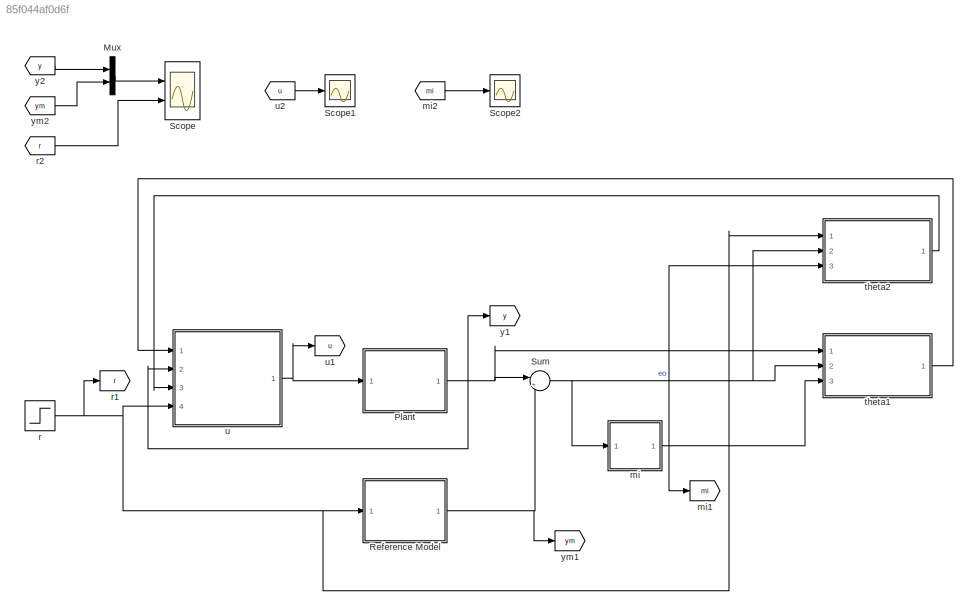
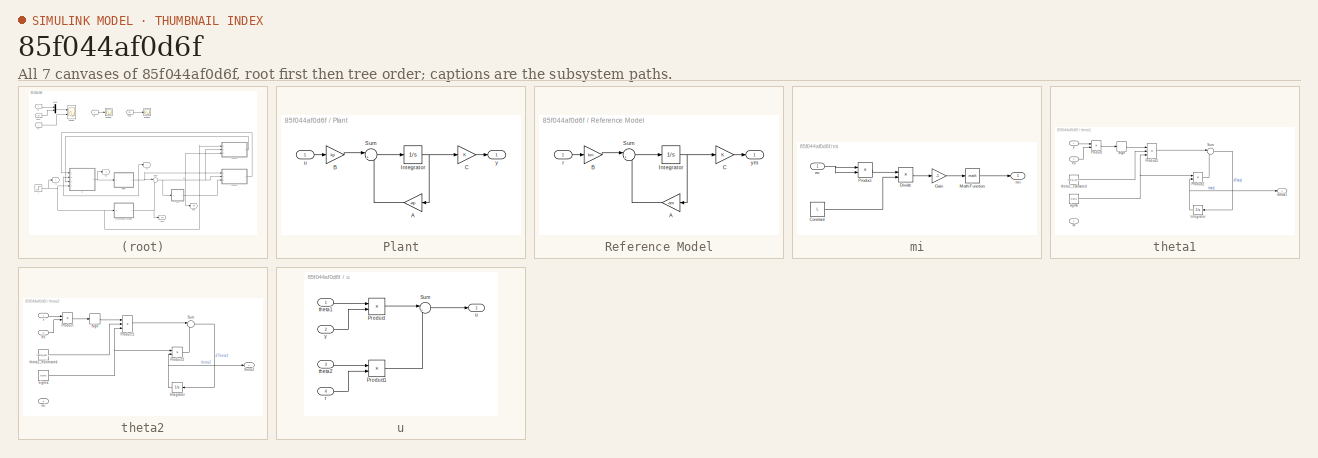
[diagram: thumbnail index - all 7 canvases of the model, root first then tree order]
MODEL slx_85f044af0d6f
KIND model
CONFIG AbsTol = auto
CONFIG EnableMultiTasking = on
CONFIG FixedStep = auto
CONFIG InitFcn = u = 0;\nym = 0;\ny = 0.5;\neo = 0;\nam = 1;\nkm = 1;\nap = -1;\nkp = 1;\ntheta1 = 0;\ntheta2 = 0;\ntheta1_estimated = 2.1;\ntheta2_estimated = 1.1;\nsigma = 1;\nL = 1000000;\nmi = 0;
CONFIG MaxStep = auto
CONFIG MinStep = auto
CONFIG RelTol = 1e-3
CONFIG SampleTimeConstraint = Unconstrained
CONFIG Solver = ode45
CONFIG SolverName = ode45
CONFIG StartTime = 0.0
CONFIG StopTime = 10
BLOCK [Mux] Mux
  DisplayOption = bar
  Inputs = 2
  Ports = [2, 1]
BLOCK [SubSystem] Plant
  Ports = [1, 1]
  RequestExecContextInheritance = off
BLOCK [Gain] Plant/A
  Gain = -ap
  OutDataTypeStr = Inherit: Inherit via internal rule
  ParamDataTypeStr = Inherit: Inherit via internal rule
  SaturateOnIntegerOverflow = off
BLOCK [Gain] Plant/B
  Gain = kp
  OutDataTypeStr = Inherit: Inherit via internal rule
  ParamDataTypeStr = Inherit: Inherit via internal rule
  SaturateOnIntegerOverflow = off
BLOCK [Gain] Plant/C
  OutDataTypeStr = Inherit: Inherit via internal rule
  ParamDataTypeStr = Inherit: Inherit via internal rule
  SaturateOnIntegerOverflow = off
BLOCK [Integrator] Plant/Integrator
  Ports = [1, 1]
BLOCK [Sum] Plant/Sum
  IconShape = round
  InputSameDT = off
  Inputs = |++
  OutDataTypeStr = Inherit: Inherit via internal rule
  Ports = [2, 1]
  SaturateOnIntegerOverflow = off
BLOCK [Inport] Plant/u
  IconDisplay = Port number
BLOCK [Outport] Plant/y
  IconDisplay = Port number
BLOCK [SubSystem] Reference Model
  Ports = [1, 1]
  RequestExecContextInheritance = off
BLOCK [Gain] Reference Model/A
  Gain = -am
  OutDataTypeStr = Inherit: Inherit via internal rule
  ParamDataTypeStr = Inherit: Inherit via internal rule
  SaturateOnIntegerOverflow = off
BLOCK [Gain] Reference Model/B
  Gain = km
  OutDataTypeStr = Inherit: Inherit via internal rule
  ParamDataTypeStr = Inherit: Inherit via internal rule
  SaturateOnIntegerOverflow = off
BLOCK [Gain] Reference Model/C
  OutDataTypeStr = Inherit: Inherit via internal rule
  ParamDataTypeStr = Inherit: Inherit via internal rule
  SaturateOnIntegerOverflow = off
BLOCK [Integrator] Reference Model/Integrator
  Ports = [1, 1]
BLOCK [Sum] Reference Model/Sum
  IconShape = round
  InputSameDT = off
  Inputs = |++
  OutDataTypeStr = Inherit: Inherit via internal rule
  Ports = [2, 1]
  SaturateOnIntegerOverflow = off
BLOCK [Inport] Reference Model/r
  IconDisplay = Port number
BLOCK [Outport] Reference Model/ym
  IconDisplay = Port number
BLOCK [Scope] Scope
  Floating = off
  NumInputPorts = 2
  Ports = [2]
  ScopeSpecificationString = Simulink.scopes.TimeScopeBlockCfg('CurrentConfiguration', extmgr.ConfigurationSet(extmgr.Configuration('Core','General UI',true),extmgr.Configuration('Core','Source UI',true),extmgr.Configuration('Sources','WiredSimulink',true,'DataLoggingSaveFormat','StructureWithTime','DataLoggingLimitDataPoints',true,'DataLoggingDecimation','1','DataLoggingDecimateData',true),extmgr.Configuration('Visuals','Tim...<+2341ch>
BLOCK [Scope] Scope1
  Floating = off
  NumInputPorts = 1
  Ports = [1]
  ScopeSpecificationString = C++SS(StrPVP('Location','[374, 222, 1029, 680]'),StrPVP('Open','off'),MxPVP('AxesTitles',53,'struct(''axes1'',''%<SignalLabel>'')'),MxPVP('ScopeGraphics',56,'struct(''FigureColor'',''[0.5 0.5 0.5]'',''AxesColor'',''[0 0 0]'',''AxesTickColor'',''[1 1 1]'',''LineColors'',''[1 1 0;1 0 1;0 1 1;1 0 0;0 1 0;0 0 1]'',''LineStyles'',''-|-|-|-|-|-'',''LineWidths'',''[0.5 0.5 0.5 0.5 0.5 0.5]'',''MarkerStyl...<+272ch>
BLOCK [Scope] Scope2
  Floating = off
  NumInputPorts = 1
  Ports = [1]
  ScopeSpecificationString = C++SS(StrPVP('Location','[322, 233, 1032, 659]'),StrPVP('Open','off'),MxPVP('AxesTitles',53,'struct(''axes1'',''%<SignalLabel>'')'),MxPVP('ScopeGraphics',56,'struct(''FigureColor'',''[0.5 0.5 0.5]'',''AxesColor'',''[0 0 0]'',''AxesTickColor'',''[1 1 1]'',''LineColors'',''[1 1 0;1 0 1;0 1 1;1 0 0;0 1 0;0 0 1]'',''LineStyles'',''-|-|-|-|-|-'',''LineWidths'',''[0.5 0.5 0.5 0.5 0.5 0.5]'',''MarkerStyl...<+272ch>
BLOCK [Sum] Sum
  IconShape = round
  InputSameDT = off
  Inputs = |+-
  OutDataTypeStr = Inherit: Inherit via internal rule
  Ports = [2, 1]
  SaturateOnIntegerOverflow = off
BLOCK [SubSystem] mi
  Ports = [1, 1]
  RequestExecContextInheritance = off
BLOCK [Constant] mi/Constant
  Value = L
BLOCK [Product] mi/Divide
  InputSameDT = off
  Inputs = */
  OutDataTypeStr = Inherit: Inherit via internal rule
  Ports = [2, 1]
  RndMeth = Floor
  SaturateOnIntegerOverflow = off
BLOCK [Gain] mi/Gain
  Gain = -1
  OutDataTypeStr = Inherit: Inherit via internal rule
  ParamDataTypeStr = Inherit: Inherit via internal rule
  SaturateOnIntegerOverflow = off
BLOCK [Math] mi/Math Function
  Ports = [1, 1]
BLOCK [Product] mi/Product
  InputSameDT = off
  OutDataTypeStr = Inherit: Inherit via internal rule
  Ports = [2, 1]
  RndMeth = Floor
  SaturateOnIntegerOverflow = off
BLOCK [Inport] mi/eo
  IconDisplay = Port number
BLOCK [Outport] mi/mi
  IconDisplay = Port number
BLOCK [Goto] mi1
  GotoTag = mi
BLOCK [From] mi2
  GotoTag = mi
BLOCK [Step] r
  SampleTime = 0
BLOCK [Goto] r1
  GotoTag = r
BLOCK [From] r2
  GotoTag = r
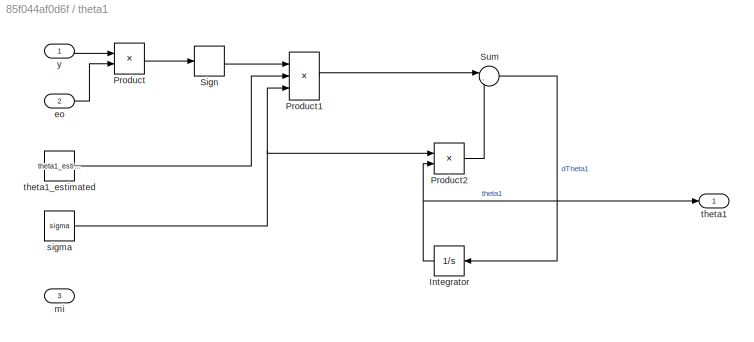
BLOCK [SubSystem] theta1
  Ports = [3, 1]
  RequestExecContextInheritance = off
BLOCK [Integrator] theta1/Integrator
  Ports = [1, 1]
BLOCK [Product] theta1/Product
  InputSameDT = off
  OutDataTypeStr = Inherit: Inherit via internal rule
  Ports = [2, 1]
  RndMeth = Floor
  SaturateOnIntegerOverflow = off
BLOCK [Product] theta1/Product1
  InputSameDT = off
  Inputs = 3
  OutDataTypeStr = Inherit: Inherit via internal rule
  Ports = [3, 1]
  RndMeth = Floor
  SaturateOnIntegerOverflow = off
BLOCK [Product] theta1/Product2
  InputSameDT = off
  OutDataTypeStr = Inherit: Inherit via internal rule
  Ports = [2, 1]
  RndMeth = Floor
  SaturateOnIntegerOverflow = off
BLOCK [Signum] theta1/Sign
BLOCK [Sum] theta1/Sum
  IconShape = round
  InputSameDT = off
  Inputs = |--
  OutDataTypeStr = Inherit: Inherit via internal rule
  Ports = [2, 1]
  SaturateOnIntegerOverflow = off
BLOCK [Inport] theta1/eo
  IconDisplay = Port number
  Port = 2
BLOCK [Inport] theta1/mi
  IconDisplay = Port number
  Port = 3
BLOCK [Constant] theta1/sigma
  Value = sigma
BLOCK [Outport] theta1/theta1
  IconDisplay = Port number
BLOCK [Constant] theta1/theta1_estimated
  Value = theta1_estimated
BLOCK [Inport] theta1/y
  IconDisplay = Port number
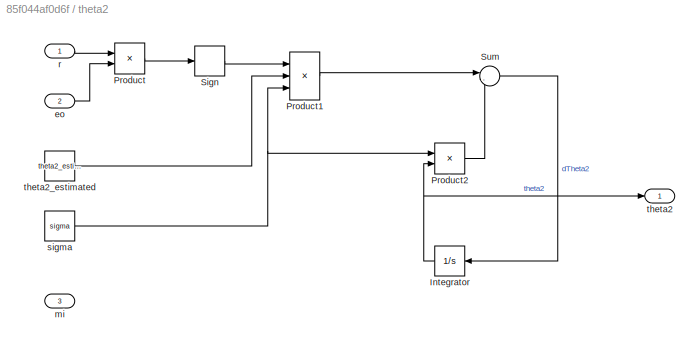
BLOCK [SubSystem] theta2
  Ports = [3, 1]
  RequestExecContextInheritance = off
BLOCK [Integrator] theta2/Integrator
  Ports = [1, 1]
BLOCK [Product] theta2/Product
  InputSameDT = off
  OutDataTypeStr = Inherit: Inherit via internal rule
  Ports = [2, 1]
  RndMeth = Floor
  SaturateOnIntegerOverflow = off
BLOCK [Product] theta2/Product1
  InputSameDT = off
  Inputs = 3
  OutDataTypeStr = Inherit: Inherit via internal rule
  Ports = [3, 1]
  RndMeth = Floor
  SaturateOnIntegerOverflow = off
BLOCK [Product] theta2/Product2
  InputSameDT = off
  OutDataTypeStr = Inherit: Inherit via internal rule
  Ports = [2, 1]
  RndMeth = Floor
  SaturateOnIntegerOverflow = off
BLOCK [Signum] theta2/Sign
BLOCK [Sum] theta2/Sum
  IconShape = round
  InputSameDT = off
  Inputs = |--
  OutDataTypeStr = Inherit: Inherit via internal rule
  Ports = [2, 1]
  SaturateOnIntegerOverflow = off
BLOCK [Inport] theta2/eo
  IconDisplay = Port number
  Port = 2
BLOCK [Inport] theta2/mi
  IconDisplay = Port number
  Port = 3
BLOCK [Inport] theta2/r
  IconDisplay = Port number
BLOCK [Constant] theta2/sigma
  Value = sigma
BLOCK [Outport] theta2/theta2
  IconDisplay = Port number
BLOCK [Constant] theta2/theta2_estimated
  Value = theta2_estimated
BLOCK [SubSystem] u
  Ports = [4, 1]
  RequestExecContextInheritance = off
BLOCK [Product] u/Product
  InputSameDT = off
  OutDataTypeStr = Inherit: Inherit via internal rule
  Ports = [2, 1]
  RndMeth = Floor
  SaturateOnIntegerOverflow = off
BLOCK [Product] u/Product1
  InputSameDT = off
  OutDataTypeStr = Inherit: Inherit via internal rule
  Ports = [2, 1]
  RndMeth = Floor
  SaturateOnIntegerOverflow = off
BLOCK [Sum] u/Sum
  IconShape = round
  InputSameDT = off
  Inputs = |++
  OutDataTypeStr = Inherit: Inherit via internal rule
  Ports = [2, 1]
  SaturateOnIntegerOverflow = off
BLOCK [Inport] u/r
  IconDisplay = Port number
  Port = 4
BLOCK [Inport] u/theta1
  IconDisplay = Port number
BLOCK [Inport] u/theta2
  IconDisplay = Port number
  Port = 3
BLOCK [Outport] u/u
  IconDisplay = Port number
BLOCK [Inport] u/y
  IconDisplay = Port number
  Port = 2
BLOCK [Goto] u1
  GotoTag = u
BLOCK [From] u2
  GotoTag = u
BLOCK [Goto] y1
  GotoTag = y
BLOCK [From] y2
  GotoTag = y
BLOCK [Goto] ym1
  GotoTag = ym
BLOCK [From] ym2
  GotoTag = ym
LINE Mux:1 -> Scope:1
LINE Plant/A:1 -> Plant/Sum:2
LINE Plant/B:1 -> Plant/Sum:1
LINE Plant/C:1 -> Plant/y:1
NET Plant/Integrator:1 -> Plant/A:1, Plant/C:1
LINE Plant/Sum:1 -> Plant/Integrator:1
LINE Plant/u:1 -> Plant/B:1
NET Plant:1 -> Sum:1, theta1:1, u:2, y1:1
LINE Reference Model/A:1 -> Reference Model/Sum:2
LINE Reference Model/B:1 -> Reference Model/Sum:1
LINE Reference Model/C:1 -> Reference Model/ym:1
NET Reference Model/Integrator:1 -> Reference Model/A:1, Reference Model/C:1
LINE Reference Model/Sum:1 -> Reference Model/Integrator:1
LINE Reference Model/r:1 -> Reference Model/B:1
NET Reference Model:1 -> Sum:2, ym1:1
NET Sum:1 -> mi:1, theta1:2, theta2:2
LINE mi/Constant:1 -> mi/Divide:2
LINE mi/Divide:1 -> mi/Gain:1
LINE mi/Gain:1 -> mi/Math Function:1
LINE mi/Math Function:1 -> mi/mi:1
LINE mi/Product:1 -> mi/Divide:1
NET mi/eo:1 -> mi/Product:1, mi/Product:2
LINE mi2:1 -> Scope2:1
NET mi:1 -> mi1:1, theta1:3, theta2:3
LINE r2:1 -> Scope:2
NET r:1 -> Reference Model:1, r1:1, theta2:1, u:4
NET theta1/Integrator:1 -> theta1/Product2:2, theta1/theta1:1
LINE theta1/Product1:1 -> theta1/Sum:1
LINE theta1/Product2:1 -> theta1/Sum:2
LINE theta1/Product:1 -> theta1/Sign:1
LINE theta1/Sign:1 -> theta1/Product1:1
LINE theta1/Sum:1 -> theta1/Integrator:1
LINE theta1/eo:1 -> theta1/Product:2
NET theta1/sigma:1 -> theta1/Product1:3, theta1/Product2:1
LINE theta1/theta1_estimated:1 -> theta1/Product1:2
LINE theta1/y:1 -> theta1/Product:1
LINE theta1:1 -> u:1
NET theta2/Integrator:1 -> theta2/Product2:2, theta2/theta2:1
LINE theta2/Product1:1 -> theta2/Sum:1
LINE theta2/Product2:1 -> theta2/Sum:2
LINE theta2/Product:1 -> theta2/Sign:1
LINE theta2/Sign:1 -> theta2/Product1:1
LINE theta2/Sum:1 -> theta2/Integrator:1
LINE theta2/eo:1 -> theta2/Product:2
LINE theta2/r:1 -> theta2/Product:1
NET theta2/sigma:1 -> theta2/Product1:3, theta2/Product2:1
LINE theta2/theta2_estimated:1 -> theta2/Product1:2
LINE theta2:1 -> u:3
LINE u/Product1:1 -> u/Sum:2
LINE u/Product:1 -> u/Sum:1
LINE u/Sum:1 -> u/u:1
LINE u/r:1 -> u/Product1:2
LINE u/theta1:1 -> u/Product:1
LINE u/theta2:1 -> u/Product1:1
LINE u/y:1 -> u/Product:2
LINE u2:1 -> Scope1:1
NET u:1 -> Plant:1, u1:1
LINE y2:1 -> Mux:1
LINE ym2:1 -> Mux:2
note: NET lines group one-source signal fan-out (src -> all destinations, sorted); 1:1 wires keep LINE
